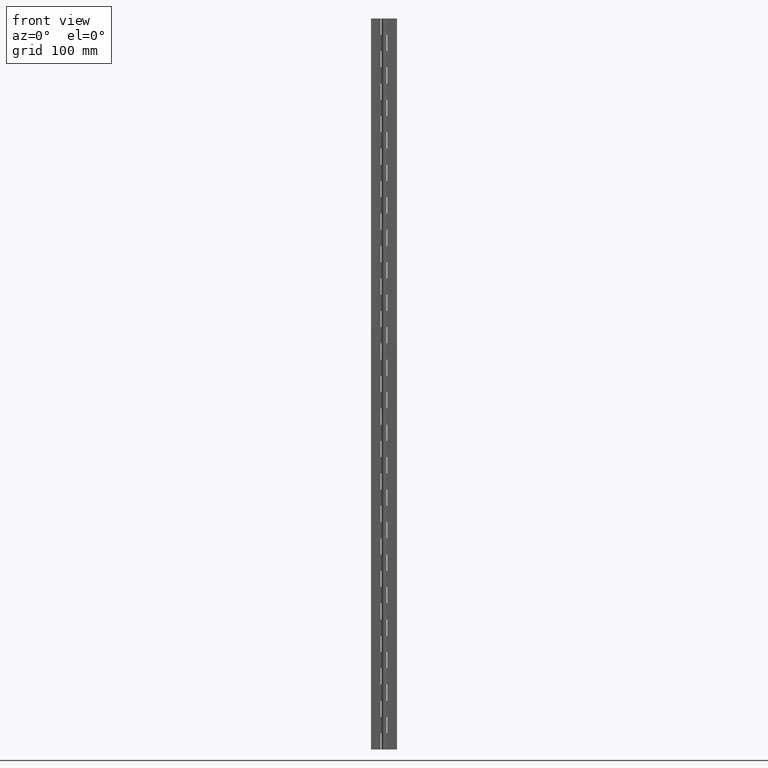
[diagram: clean part render]
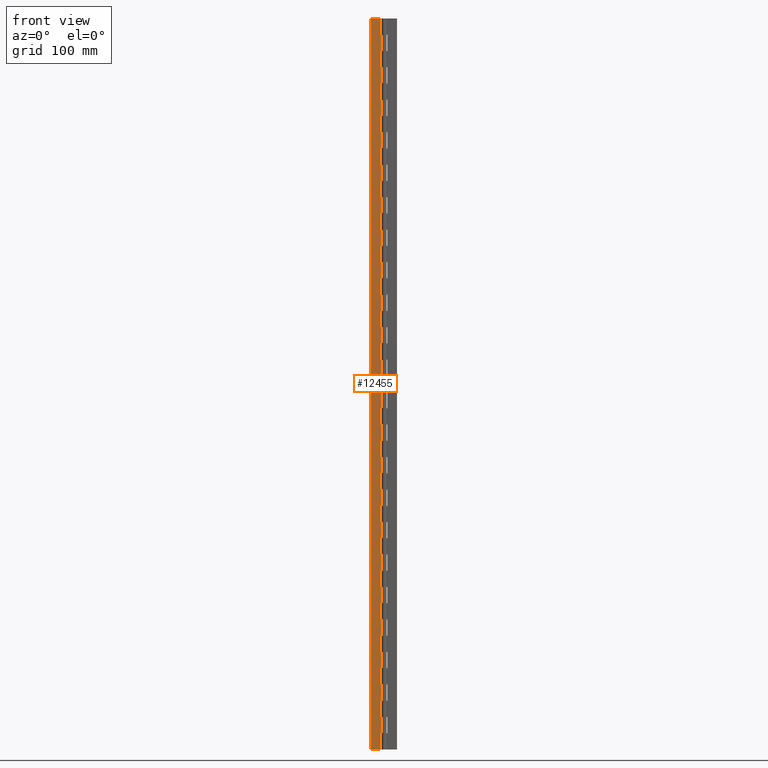
[diagram: same view with one face highlighted and labeled with its STEP entity id]
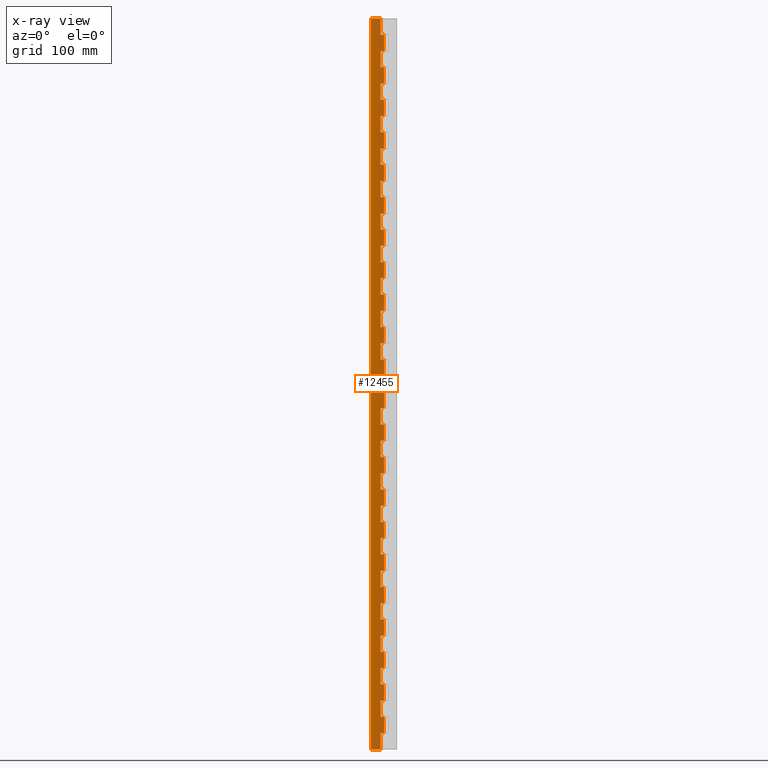
[diagram: x-ray of the same camera — body ghosted, the highlighted face saturated]
A machine part, front view. The second image highlights one B-rep face of the part: STEP entity #12455.
The next image is the same camera in x-ray: the body ghosted, the highlighted face saturated — about 0% of this face is hidden behind the body in this view.
In plain terms, the highlighted face is a freeform B-spline surface patch.
Its self-contained STEP definition (entity closure, byte-faithful):
#6569=CARTESIAN_POINT('',(-4.0,1.750000000000000,0.0));
#6570=VERTEX_POINT('',#6569);
#6583=CARTESIAN_POINT('',(-4.0,1.750000000000030,20.000022000000051));
#6584=VERTEX_POINT('',#6583);
#6590=CARTESIAN_POINT('',(-4.0,1.750000000000000,0.0));
#6591=CARTESIAN_POINT('',(-4.0,1.750000000000030,20.000022000000051));
#6592=QUASI_UNIFORM_CURVE('',1,(#6590,#6591),.UNSPECIFIED.,.F.,.U.);
#6593=EDGE_CURVE('',#6570,#6584,#6592,.T.);
#6633=CARTESIAN_POINT('',(1.071563E-016,1.750000000000000,20.000022000000051));
#6634=VERTEX_POINT('',#6633);
#6654=CARTESIAN_POINT('',(-4.0,1.750000000000030,20.000022000000051));
#6655=CARTESIAN_POINT('',(1.071563E-016,1.750000000000000,20.000022000000051));
#6656=QUASI_UNIFORM_CURVE('',1,(#6654,#6655),.UNSPECIFIED.,.F.,.U.);
#6657=EDGE_CURVE('',#6584,#6634,#6656,.T.);
#6703=CARTESIAN_POINT('',(-4.0,1.750000000000000,40.000021999999952));
#6704=VERTEX_POINT('',#6703);
#6710=CARTESIAN_POINT('',(1.071563E-016,1.750000000000000,40.000021999999952));
#6711=VERTEX_POINT('',#6710);
#6712=CARTESIAN_POINT('',(-4.0,1.750000000000000,40.000021999999952));
#6713=CARTESIAN_POINT('',(1.071563E-016,1.750000000000000,40.000021999999952));
#6714=QUASI_UNIFORM_CURVE('',1,(#6712,#6713),.UNSPECIFIED.,.F.,.U.);
#6715=EDGE_CURVE('',#6704,#6711,#6714,.T.);
#6781=CARTESIAN_POINT('',(1.071563E-016,1.750000000000000,60.000022000000101));
#6782=VERTEX_POINT('',#6781);
#6802=CARTESIAN_POINT('',(-4.0,1.750000000000030,60.000022000000101));
#6803=VERTEX_POINT('',#6802);
#6804=CARTESIAN_POINT('',(1.071563E-016,1.750000000000000,60.000022000000101));
#6805=CARTESIAN_POINT('',(-4.0,1.750000000000030,60.000022000000101));
#6806=QUASI_UNIFORM_CURVE('',1,(#6804,#6805),.UNSPECIFIED.,.F.,.U.);
#6807=EDGE_CURVE('',#6782,#6803,#6806,.T.);
#6829=CARTESIAN_POINT('',(-4.0,1.750000000000030,60.000022000000101));
#6830=CARTESIAN_POINT('',(-4.0,1.750000000000000,40.000021999999952));
#6831=QUASI_UNIFORM_CURVE('',1,(#6829,#6830),.UNSPECIFIED.,.F.,.U.);
#6832=EDGE_CURVE('',#6803,#6704,#6831,.T.);
#6879=CARTESIAN_POINT('',(-4.0,1.750000000000000,80.000021999999888));
#6880=VERTEX_POINT('',#6879);
#6886=CARTESIAN_POINT('',(1.071563E-016,1.750000000000000,80.000021999999888));
#6887=VERTEX_POINT('',#6886);
#6888=CARTESIAN_POINT('',(-4.0,1.750000000000000,80.000021999999888));
#6889=CARTESIAN_POINT('',(1.071563E-016,1.750000000000000,80.000021999999888));
#6890=QUASI_UNIFORM_CURVE('',1,(#6888,#6889),.UNSPECIFIED.,.F.,.U.);
#6891=EDGE_CURVE('',#6880,#6887,#6890,.T.);
#6957=CARTESIAN_POINT('',(1.071563E-016,1.750000000000000,100.000022000000000));
#6958=VERTEX_POINT('',#6957);
#6978=CARTESIAN_POINT('',(-4.0,1.750000000000030,100.000022000000000));
#6979=VERTEX_POINT('',#6978);
#6980=CARTESIAN_POINT('',(1.071563E-016,1.750000000000000,100.000022000000000));
#6981=CARTESIAN_POINT('',(-4.0,1.750000000000030,100.000022000000000));
#6982=QUASI_UNIFORM_CURVE('',1,(#6980,#6981),.UNSPECIFIED.,.F.,.U.);
#6983=EDGE_CURVE('',#6958,#6979,#6982,.T.);
#7005=CARTESIAN_POINT('',(-4.0,1.750000000000030,100.000022000000000));
#7006=CARTESIAN_POINT('',(-4.0,1.750000000000000,80.000021999999888));
#7007=QUASI_UNIFORM_CURVE('',1,(#7005,#7006),.UNSPECIFIED.,.F.,.U.);
#7008=EDGE_CURVE('',#6979,#6880,#7007,.T.);
#7055=CARTESIAN_POINT('',(-4.0,1.750000000000000,120.000022000000000));
#7056=VERTEX_POINT('',#7055);
#7062=CARTESIAN_POINT('',(1.071563E-016,1.750000000000000,120.000022000000000));
#7063=VERTEX_POINT('',#7062);
#7064=CARTESIAN_POINT('',(-4.0,1.750000000000000,120.000022000000000));
#7065=CARTESIAN_POINT('',(1.071563E-016,1.750000000000000,120.000022000000000));
#7066=QUASI_UNIFORM_CURVE('',1,(#7064,#7065),.UNSPECIFIED.,.F.,.U.);
#7067=EDGE_CURVE('',#7056,#7063,#7066,.T.);
#7133=CARTESIAN_POINT('',(1.071563E-016,1.750000000000000,140.000022000000000));
#7134=VERTEX_POINT('',#7133);
#7154=CARTESIAN_POINT('',(-4.0,1.750000000000030,140.000022000000000));
#7155=VERTEX_POINT('',#7154);
#7156=CARTESIAN_POINT('',(1.071563E-016,1.750000000000000,140.000022000000000));
#7157=CARTESIAN_POINT('',(-4.0,1.750000000000030,140.000022000000000));
#7158=QUASI_UNIFORM_CURVE('',1,(#7156,#7157),.UNSPECIFIED.,.F.,.U.);
#7159=EDGE_CURVE('',#7134,#7155,#7158,.T.);
#7181=CARTESIAN_POINT('',(-4.0,1.750000000000030,140.000022000000000));
#7182=CARTESIAN_POINT('',(-4.0,1.750000000000000,120.000022000000000));
#7183=QUASI_UNIFORM_CURVE('',1,(#7181,#7182),.UNSPECIFIED.,.F.,.U.);
#7184=EDGE_CURVE('',#7155,#7056,#7183,.T.);
#7231=CARTESIAN_POINT('',(-4.0,1.750000000000000,160.000022000000000));
#7232=VERTEX_POINT('',#7231);
#7238=CARTESIAN_POINT('',(1.071563E-016,1.750000000000000,160.000022000000000));
#7239=VERTEX_POINT('',#7238);
#7240=CARTESIAN_POINT('',(-4.0,1.750000000000000,160.000022000000000));
#7241=CARTESIAN_POINT('',(1.071563E-016,1.750000000000000,160.000022000000000));
#7242=QUASI_UNIFORM_CURVE('',1,(#7240,#7241),.UNSPECIFIED.,.F.,.U.);
#7243=EDGE_CURVE('',#7232,#7239,#7242,.T.);
#7309=CARTESIAN_POINT('',(1.071563E-016,1.750000000000000,180.000022000000000));
#7310=VERTEX_POINT('',#7309);
#7330=CARTESIAN_POINT('',(-4.0,1.750000000000030,180.000022000000000));
#7331=VERTEX_POINT('',#7330);
#7332=CARTESIAN_POINT('',(1.071563E-016,1.750000000000000,180.000022000000000));
#7333=CARTESIAN_POINT('',(-4.0,1.750000000000030,180.000022000000000));
#7334=QUASI_UNIFORM_CURVE('',1,(#7332,#7333),.UNSPECIFIED.,.F.,.U.);
#7335=EDGE_CURVE('',#7310,#7331,#7334,.T.);
#7357=CARTESIAN_POINT('',(-4.0,1.750000000000030,180.000022000000000));
#7358=CARTESIAN_POINT('',(-4.0,1.750000000000000,160.000022000000000));
#7359=QUASI_UNIFORM_CURVE('',1,(#7357,#7358),.UNSPECIFIED.,.F.,.U.);
#7360=EDGE_CURVE('',#7331,#7232,#7359,.T.);
#7407=CARTESIAN_POINT('',(-4.0,1.750000000000000,200.000022000000000));
#7408=VERTEX_POINT('',#7407);
#7414=CARTESIAN_POINT('',(1.071563E-016,1.750000000000000,200.000022000000000));
#7415=VERTEX_POINT('',#7414);
#7416=CARTESIAN_POINT('',(-4.0,1.750000000000000,200.000022000000000));
#7417=CARTESIAN_POINT('',(1.071563E-016,1.750000000000000,200.000022000000000));
#7418=QUASI_UNIFORM_CURVE('',1,(#7416,#7417),.UNSPECIFIED.,.F.,.U.);
#7419=EDGE_CURVE('',#7408,#7415,#7418,.T.);
#7485=CARTESIAN_POINT('',(1.071563E-016,1.750000000000000,220.000022000000000));
#7486=VERTEX_POINT('',#7485);
#7506=CARTESIAN_POINT('',(-4.0,1.750000000000030,220.000022000000000));
#7507=VERTEX_POINT('',#7506);
#7508=CARTESIAN_POINT('',(1.071563E-016,1.750000000000000,220.000022000000000));
#7509=CARTESIAN_POINT('',(-4.0,1.750000000000030,220.000022000000000));
#7510=QUASI_UNIFORM_CURVE('',1,(#7508,#7509),.UNSPECIFIED.,.F.,.U.);
#7511=EDGE_CURVE('',#7486,#7507,#7510,.T.);
#7533=CARTESIAN_POINT('',(-4.0,1.750000000000030,220.000022000000000));
#7534=CARTESIAN_POINT('',(-4.0,1.750000000000000,200.000022000000000));
#7535=QUASI_UNIFORM_CURVE('',1,(#7533,#7534),.UNSPECIFIED.,.F.,.U.);
#7536=EDGE_CURVE('',#7507,#7408,#7535,.T.);
#7583=CARTESIAN_POINT('',(-4.0,1.750000000000000,240.000022000000000));
#7584=VERTEX_POINT('',#7583);
#7590=CARTESIAN_POINT('',(1.071563E-016,1.750000000000000,240.000022000000000));
#7591=VERTEX_POINT('',#7590);
#7592=CARTESIAN_POINT('',(-4.0,1.750000000000000,240.000022000000000));
#7593=CARTESIAN_POINT('',(1.071563E-016,1.750000000000000,240.000022000000000));
#7594=QUASI_UNIFORM_CURVE('',1,(#7592,#7593),.UNSPECIFIED.,.F.,.U.);
#7595=EDGE_CURVE('',#7584,#7591,#7594,.T.);
#7661=CARTESIAN_POINT('',(1.071563E-016,1.750000000000000,260.000022000000000));
#7662=VERTEX_POINT('',#7661);
#7682=CARTESIAN_POINT('',(-4.0,1.750000000000030,260.000022000000000));
#7683=VERTEX_POINT('',#7682);
#7684=CARTESIAN_POINT('',(1.071563E-016,1.750000000000000,260.000022000000000));
#7685=CARTESIAN_POINT('',(-4.0,1.750000000000030,260.000022000000000));
#7686=QUASI_UNIFORM_CURVE('',1,(#7684,#7685),.UNSPECIFIED.,.F.,.U.);
#7687=EDGE_CURVE('',#7662,#7683,#7686,.T.);
#7709=CARTESIAN_POINT('',(-4.0,1.750000000000030,260.000022000000000));
#7710=CARTESIAN_POINT('',(-4.0,1.750000000000000,240.000022000000000));
#7711=QUASI_UNIFORM_CURVE('',1,(#7709,#7710),.UNSPECIFIED.,.F.,.U.);
#7712=EDGE_CURVE('',#7683,#7584,#7711,.T.);
#7759=CARTESIAN_POINT('',(-4.0,1.750000000000000,280.000022000000000));
#7760=VERTEX_POINT('',#7759);
#7766=CARTESIAN_POINT('',(1.071563E-016,1.750000000000000,280.000022000000000));
#7767=VERTEX_POINT('',#7766);
#7768=CARTESIAN_POINT('',(-4.0,1.750000000000000,280.000022000000000));
#7769=CARTESIAN_POINT('',(1.071563E-016,1.750000000000000,280.000022000000000));
#7770=QUASI_UNIFORM_CURVE('',1,(#7768,#7769),.UNSPECIFIED.,.F.,.U.);
#7771=EDGE_CURVE('',#7760,#7767,#7770,.T.);
#7837=CARTESIAN_POINT('',(1.071563E-016,1.750000000000000,300.000022000000000));
#7838=VERTEX_POINT('',#7837);
#7858=CARTESIAN_POINT('',(-4.0,1.750000000000030,300.000022000000000));
#7859=VERTEX_POINT('',#7858);
#7860=CARTESIAN_POINT('',(1.071563E-016,1.750000000000000,300.000022000000000));
#7861=CARTESIAN_POINT('',(-4.0,1.750000000000030,300.000022000000000));
#7862=QUASI_UNIFORM_CURVE('',1,(#7860,#7861),.UNSPECIFIED.,.F.,.U.);
#7863=EDGE_CURVE('',#7838,#7859,#7862,.T.);
#7885=CARTESIAN_POINT('',(-4.0,1.750000000000030,300.000022000000000));
#7886=CARTESIAN_POINT('',(-4.0,1.750000000000000,280.000022000000000));
#7887=QUASI_UNIFORM_CURVE('',1,(#7885,#7886),.UNSPECIFIED.,.F.,.U.);
#7888=EDGE_CURVE('',#7859,#7760,#7887,.T.);
#7935=CARTESIAN_POINT('',(-4.0,1.750000000000000,320.000022000000000));
#7936=VERTEX_POINT('',#7935);
#7942=CARTESIAN_POINT('',(1.071563E-016,1.750000000000000,320.000022000000000));
#7943=VERTEX_POINT('',#7942);
#7944=CARTESIAN_POINT('',(-4.0,1.750000000000000,320.000022000000000));
#7945=CARTESIAN_POINT('',(1.071563E-016,1.750000000000000,320.000022000000000));
#7946=QUASI_UNIFORM_CURVE('',1,(#7944,#7945),.UNSPECIFIED.,.F.,.U.);
#7947=EDGE_CURVE('',#7936,#7943,#7946,.T.);
#8013=CARTESIAN_POINT('',(1.071563E-016,1.750000000000000,340.000022000000000));
#8014=VERTEX_POINT('',#8013);
#8034=CARTESIAN_POINT('',(-4.0,1.750000000000030,340.000022000000000));
#8035=VERTEX_POINT('',#8034);
#8036=CARTESIAN_POINT('',(1.071563E-016,1.750000000000000,340.000022000000000));
#8037=CARTESIAN_POINT('',(-4.0,1.750000000000030,340.000022000000000));
#8038=QUASI_UNIFORM_CURVE('',1,(#8036,#8037),.UNSPECIFIED.,.F.,.U.);
#8039=EDGE_CURVE('',#8014,#8035,#8038,.T.);
#8061=CARTESIAN_POINT('',(-4.0,1.750000000000030,340.000022000000000));
#8062=CARTESIAN_POINT('',(-4.0,1.750000000000000,320.000022000000000));
#8063=QUASI_UNIFORM_CURVE('',1,(#8061,#8062),.UNSPECIFIED.,.F.,.U.);
#8064=EDGE_CURVE('',#8035,#7936,#8063,.T.);
#8111=CARTESIAN_POINT('',(-4.0,1.750000000000000,360.000022000000000));
#8112=VERTEX_POINT('',#8111);
#8118=CARTESIAN_POINT('',(1.071563E-016,1.750000000000000,360.000022000000000));
#8119=VERTEX_POINT('',#8118);
#8120=CARTESIAN_POINT('',(-4.0,1.750000000000000,360.000022000000000));
#8121=CARTESIAN_POINT('',(1.071563E-016,1.750000000000000,360.000022000000000));
#8122=QUASI_UNIFORM_CURVE('',1,(#8120,#8121),.UNSPECIFIED.,.F.,.U.);
#8123=EDGE_CURVE('',#8112,#8119,#8122,.T.);
#8189=CARTESIAN_POINT('',(1.071563E-016,1.750000000000000,380.000022000000000));
#8190=VERTEX_POINT('',#8189);
#8210=CARTESIAN_POINT('',(-4.0,1.750000000000030,380.000022000000000));
#8211=VERTEX_POINT('',#8210);
#8212=CARTESIAN_POINT('',(1.071563E-016,1.750000000000000,380.000022000000000));
#8213=CARTESIAN_POINT('',(-4.0,1.750000000000030,380.000022000000000));
#8214=QUASI_UNIFORM_CURVE('',1,(#8212,#8213),.UNSPECIFIED.,.F.,.U.);
#8215=EDGE_CURVE('',#8190,#8211,#8214,.T.);
#8237=CARTESIAN_POINT('',(-4.0,1.750000000000030,380.000022000000000));
#8238=CARTESIAN_POINT('',(-4.0,1.750000000000000,360.000022000000000));
#8239=QUASI_UNIFORM_CURVE('',1,(#8237,#8238),.UNSPECIFIED.,.F.,.U.);
#8240=EDGE_CURVE('',#8211,#8112,#8239,.T.);
#8287=CARTESIAN_POINT('',(-4.0,1.750000000000000,400.000022000000000));
#8288=VERTEX_POINT('',#8287);
#8294=CARTESIAN_POINT('',(1.071563E-016,1.750000000000000,400.000022000000000));
#8295=VERTEX_POINT('',#8294);
#8296=CARTESIAN_POINT('',(-4.0,1.750000000000000,400.000022000000000));
#8297=CARTESIAN_POINT('',(1.071563E-016,1.750000000000000,400.000022000000000));
#8298=QUASI_UNIFORM_CURVE('',1,(#8296,#8297),.UNSPECIFIED.,.F.,.U.);
#8299=EDGE_CURVE('',#8288,#8295,#8298,.T.);
#8365=CARTESIAN_POINT('',(1.071563E-016,1.750000000000000,420.000021999999890));
#8366=VERTEX_POINT('',#8365);
#8386=CARTESIAN_POINT('',(-4.0,1.750000000000030,420.000021999999890));
#8387=VERTEX_POINT('',#8386);
#8388=CARTESIAN_POINT('',(1.071563E-016,1.750000000000000,420.000021999999890));
#8389=CARTESIAN_POINT('',(-4.0,1.750000000000030,420.000021999999890));
#8390=QUASI_UNIFORM_CURVE('',1,(#8388,#8389),.UNSPECIFIED.,.F.,.U.);
#8391=EDGE_CURVE('',#8366,#8387,#8390,.T.);
#8413=CARTESIAN_POINT('',(-4.0,1.750000000000030,420.000021999999890));
#8414=CARTESIAN_POINT('',(-4.0,1.750000000000000,400.000022000000000));
#8415=QUASI_UNIFORM_CURVE('',1,(#8413,#8414),.UNSPECIFIED.,.F.,.U.);
#8416=EDGE_CURVE('',#8387,#8288,#8415,.T.);
#8463=CARTESIAN_POINT('',(-4.0,1.750000000000000,440.000022000000000));
#8464=VERTEX_POINT('',#8463);
#8470=CARTESIAN_POINT('',(1.071563E-016,1.750000000000000,440.000022000000000));
#8471=VERTEX_POINT('',#8470);
#8472=CARTESIAN_POINT('',(-4.0,1.750000000000000,440.000022000000000));
#8473=CARTESIAN_POINT('',(1.071563E-016,1.750000000000000,440.000022000000000));
#8474=QUASI_UNIFORM_CURVE('',1,(#8472,#8473),.UNSPECIFIED.,.F.,.U.);
#8475=EDGE_CURVE('',#8464,#8471,#8474,.T.);
#8541=CARTESIAN_POINT('',(1.071563E-016,1.750000000000000,460.000022000000000));
#8542=VERTEX_POINT('',#8541);
#8562=CARTESIAN_POINT('',(-4.0,1.750000000000030,460.000022000000000));
#8563=VERTEX_POINT('',#8562);
#8564=CARTESIAN_POINT('',(1.071563E-016,1.750000000000000,460.000022000000000));
#8565=CARTESIAN_POINT('',(-4.0,1.750000000000030,460.000022000000000));
#8566=QUASI_UNIFORM_CURVE('',1,(#8564,#8565),.UNSPECIFIED.,.F.,.U.);
#8567=EDGE_CURVE('',#8542,#8563,#8566,.T.);
#8589=CARTESIAN_POINT('',(-4.0,1.750000000000030,460.000022000000000));
#8590=CARTESIAN_POINT('',(-4.0,1.750000000000000,440.000022000000000));
#8591=QUASI_UNIFORM_CURVE('',1,(#8589,#8590),.UNSPECIFIED.,.F.,.U.);
#8592=EDGE_CURVE('',#8563,#8464,#8591,.T.);
#8639=CARTESIAN_POINT('',(-4.0,1.750000000000000,480.000022000000000));
#8640=VERTEX_POINT('',#8639);
#8646=CARTESIAN_POINT('',(1.071563E-016,1.750000000000000,480.000022000000000));
#8647=VERTEX_POINT('',#8646);
#8648=CARTESIAN_POINT('',(-4.0,1.750000000000000,480.000022000000000));
#8649=CARTESIAN_POINT('',(1.071563E-016,1.750000000000000,480.000022000000000));
#8650=QUASI_UNIFORM_CURVE('',1,(#8648,#8649),.UNSPECIFIED.,.F.,.U.);
#8651=EDGE_CURVE('',#8640,#8647,#8650,.T.);
#8717=CARTESIAN_POINT('',(1.071563E-016,1.750000000000000,500.000022000000110));
#8718=VERTEX_POINT('',#8717);
#8738=CARTESIAN_POINT('',(-4.0,1.750000000000030,500.000022000000110));
#8739=VERTEX_POINT('',#8738);
#8740=CARTESIAN_POINT('',(1.071563E-016,1.750000000000000,500.000022000000110));
#8741=CARTESIAN_POINT('',(-4.0,1.750000000000030,500.000022000000110));
#8742=QUASI_UNIFORM_CURVE('',1,(#8740,#8741),.UNSPECIFIED.,.F.,.U.);
#8743=EDGE_CURVE('',#8718,#8739,#8742,.T.);
#8765=CARTESIAN_POINT('',(-4.0,1.750000000000030,500.000022000000110));
#8766=CARTESIAN_POINT('',(-4.0,1.750000000000000,480.000022000000000));
#8767=QUASI_UNIFORM_CURVE('',1,(#8765,#8766),.UNSPECIFIED.,.F.,.U.);
#8768=EDGE_CURVE('',#8739,#8640,#8767,.T.);
#8815=CARTESIAN_POINT('',(-4.0,1.750000000000000,520.000021999999940));
#8816=VERTEX_POINT('',#8815);
#8822=CARTESIAN_POINT('',(1.071563E-016,1.750000000000000,520.000021999999940));
#8823=VERTEX_POINT('',#8822);
#8824=CARTESIAN_POINT('',(-4.0,1.750000000000000,520.000021999999940));
#8825=CARTESIAN_POINT('',(1.071563E-016,1.750000000000000,520.000021999999940));
#8826=QUASI_UNIFORM_CURVE('',1,(#8824,#8825),.UNSPECIFIED.,.F.,.U.);
#8827=EDGE_CURVE('',#8816,#8823,#8826,.T.);
#8893=CARTESIAN_POINT('',(1.071563E-016,1.750000000000000,540.000021999999940));
#8894=VERTEX_POINT('',#8893);
#8914=CARTESIAN_POINT('',(-4.0,1.750000000000030,540.000021999999940));
#8915=VERTEX_POINT('',#8914);
#8916=CARTESIAN_POINT('',(1.071563E-016,1.750000000000000,540.000021999999940));
#8917=CARTESIAN_POINT('',(-4.0,1.750000000000030,540.000021999999940));
#8918=QUASI_UNIFORM_CURVE('',1,(#8916,#8917),.UNSPECIFIED.,.F.,.U.);
#8919=EDGE_CURVE('',#8894,#8915,#8918,.T.);
#8941=CARTESIAN_POINT('',(-4.0,1.750000000000030,540.000021999999940));
#8942=CARTESIAN_POINT('',(-4.0,1.750000000000000,520.000021999999940));
#8943=QUASI_UNIFORM_CURVE('',1,(#8941,#8942),.UNSPECIFIED.,.F.,.U.);
#8944=EDGE_CURVE('',#8915,#8816,#8943,.T.);
#8991=CARTESIAN_POINT('',(-4.0,1.750000000000000,560.000021999999940));
#8992=VERTEX_POINT('',#8991);
#8998=CARTESIAN_POINT('',(1.071563E-016,1.750000000000000,560.000021999999940));
#8999=VERTEX_POINT('',#8998);
#9000=CARTESIAN_POINT('',(-4.0,1.750000000000000,560.000021999999940));
#9001=CARTESIAN_POINT('',(1.071563E-016,1.750000000000000,560.000021999999940));
#9002=QUASI_UNIFORM_CURVE('',1,(#9000,#9001),.UNSPECIFIED.,.F.,.U.);
#9003=EDGE_CURVE('',#8992,#8999,#9002,.T.);
#9069=CARTESIAN_POINT('',(1.071563E-016,1.750000000000000,580.000022000000060));
#9070=VERTEX_POINT('',#9069);
#9090=CARTESIAN_POINT('',(-4.0,1.750000000000030,580.000022000000060));
#9091=VERTEX_POINT('',#9090);
#9092=CARTESIAN_POINT('',(1.071563E-016,1.750000000000000,580.000022000000060));
#9093=CARTESIAN_POINT('',(-4.0,1.750000000000030,580.000022000000060));
#9094=QUASI_UNIFORM_CURVE('',1,(#9092,#9093),.UNSPECIFIED.,.F.,.U.);
#9095=EDGE_CURVE('',#9070,#9091,#9094,.T.);
#9117=CARTESIAN_POINT('',(-4.0,1.750000000000030,580.000022000000060));
#9118=CARTESIAN_POINT('',(-4.0,1.750000000000000,560.000021999999940));
#9119=QUASI_UNIFORM_CURVE('',1,(#9117,#9118),.UNSPECIFIED.,.F.,.U.);
#9120=EDGE_CURVE('',#9091,#8992,#9119,.T.);
#9167=CARTESIAN_POINT('',(-4.0,1.750000000000000,600.000022000000060));
#9168=VERTEX_POINT('',#9167);
#9174=CARTESIAN_POINT('',(1.071563E-016,1.750000000000000,600.000022000000060));
#9175=VERTEX_POINT('',#9174);
#9176=CARTESIAN_POINT('',(-4.0,1.750000000000000,600.000022000000060));
#9177=CARTESIAN_POINT('',(1.071563E-016,1.750000000000000,600.000022000000060));
#9178=QUASI_UNIFORM_CURVE('',1,(#9176,#9177),.UNSPECIFIED.,.F.,.U.);
#9179=EDGE_CURVE('',#9168,#9175,#9178,.T.);
#9245=CARTESIAN_POINT('',(1.071563E-016,1.750000000000000,620.000022000000060));
#9246=VERTEX_POINT('',#9245);
#9266=CARTESIAN_POINT('',(-4.0,1.750000000000030,620.000022000000060));
#9267=VERTEX_POINT('',#9266);
#9268=CARTESIAN_POINT('',(1.071563E-016,1.750000000000000,620.000022000000060));
#9269=CARTESIAN_POINT('',(-4.0,1.750000000000030,620.000022000000060));
#9270=QUASI_UNIFORM_CURVE('',1,(#9268,#9269),.UNSPECIFIED.,.F.,.U.);
#9271=EDGE_CURVE('',#9246,#9267,#9270,.T.);
#9293=CARTESIAN_POINT('',(-4.0,1.750000000000030,620.000022000000060));
#9294=CARTESIAN_POINT('',(-4.0,1.750000000000000,600.000022000000060));
#9295=QUASI_UNIFORM_CURVE('',1,(#9293,#9294),.UNSPECIFIED.,.F.,.U.);
#9296=EDGE_CURVE('',#9267,#9168,#9295,.T.);
#9343=CARTESIAN_POINT('',(-4.0,1.750000000000000,640.000021999999940));
#9344=VERTEX_POINT('',#9343);
#9350=CARTESIAN_POINT('',(1.071563E-016,1.750000000000000,640.000021999999940));
#9351=VERTEX_POINT('',#9350);
#9352=CARTESIAN_POINT('',(-4.0,1.750000000000000,640.000021999999940));
#9353=CARTESIAN_POINT('',(1.071563E-016,1.750000000000000,640.000021999999940));
#9354=QUASI_UNIFORM_CURVE('',1,(#9352,#9353),.UNSPECIFIED.,.F.,.U.);
#9355=EDGE_CURVE('',#9344,#9351,#9354,.T.);
#9421=CARTESIAN_POINT('',(1.071563E-016,1.750000000000000,660.000021999999940));
#9422=VERTEX_POINT('',#9421);
#9442=CARTESIAN_POINT('',(-4.0,1.750000000000030,660.000021999999940));
#9443=VERTEX_POINT('',#9442);
#9444=CARTESIAN_POINT('',(1.071563E-016,1.750000000000000,660.000021999999940));
#9445=CARTESIAN_POINT('',(-4.0,1.750000000000030,660.000021999999940));
#9446=QUASI_UNIFORM_CURVE('',1,(#9444,#9445),.UNSPECIFIED.,.F.,.U.);
#9447=EDGE_CURVE('',#9422,#9443,#9446,.T.);
#9469=CARTESIAN_POINT('',(-4.0,1.750000000000030,660.000021999999940));
#9470=CARTESIAN_POINT('',(-4.0,1.750000000000000,640.000021999999940));
#9471=QUASI_UNIFORM_CURVE('',1,(#9469,#9470),.UNSPECIFIED.,.F.,.U.);
#9472=EDGE_CURVE('',#9443,#9344,#9471,.T.);
#9519=CARTESIAN_POINT('',(-4.0,1.750000000000000,680.000021999999940));
#9520=VERTEX_POINT('',#9519);
#9526=CARTESIAN_POINT('',(1.071563E-016,1.750000000000000,680.000021999999940));
#9527=VERTEX_POINT('',#9526);
#9528=CARTESIAN_POINT('',(-4.0,1.750000000000000,680.000021999999940));
#9529=CARTESIAN_POINT('',(1.071563E-016,1.750000000000000,680.000021999999940));
#9530=QUASI_UNIFORM_CURVE('',1,(#9528,#9529),.UNSPECIFIED.,.F.,.U.);
#9531=EDGE_CURVE('',#9520,#9527,#9530,.T.);
#9597=CARTESIAN_POINT('',(1.071563E-016,1.750000000000000,700.000021999999940));
#9598=VERTEX_POINT('',#9597);
#9618=CARTESIAN_POINT('',(-4.0,1.750000000000030,700.000021999999940));
#9619=VERTEX_POINT('',#9618);
#9620=CARTESIAN_POINT('',(1.071563E-016,1.750000000000000,700.000021999999940));
#9621=CARTESIAN_POINT('',(-4.0,1.750000000000030,700.000021999999940));
#9622=QUASI_UNIFORM_CURVE('',1,(#9620,#9621),.UNSPECIFIED.,.F.,.U.);
#9623=EDGE_CURVE('',#9598,#9619,#9622,.T.);
#9645=CARTESIAN_POINT('',(-4.0,1.750000000000030,700.000021999999940));
#9646=CARTESIAN_POINT('',(-4.0,1.750000000000000,680.000021999999940));
#9647=QUASI_UNIFORM_CURVE('',1,(#9645,#9646),.UNSPECIFIED.,.F.,.U.);
#9648=EDGE_CURVE('',#9619,#9520,#9647,.T.);
#9695=CARTESIAN_POINT('',(-4.0,1.750000000000000,720.000022000000060));
#9696=VERTEX_POINT('',#9695);
#9702=CARTESIAN_POINT('',(1.071563E-016,1.750000000000000,720.000022000000060));
#9703=VERTEX_POINT('',#9702);
#9704=CARTESIAN_POINT('',(-4.0,1.750000000000000,720.000022000000060));
#9705=CARTESIAN_POINT('',(1.071563E-016,1.750000000000000,720.000022000000060));
#9706=QUASI_UNIFORM_CURVE('',1,(#9704,#9705),.UNSPECIFIED.,.F.,.U.);
#9707=EDGE_CURVE('',#9696,#9703,#9706,.T.);
#9773=CARTESIAN_POINT('',(1.071563E-016,1.750000000000000,740.000022000000060));
#9774=VERTEX_POINT('',#9773);
#9794=CARTESIAN_POINT('',(-4.0,1.750000000000030,740.000022000000060));
#9795=VERTEX_POINT('',#9794);
#9796=CARTESIAN_POINT('',(1.071563E-016,1.750000000000000,740.000022000000060));
#9797=CARTESIAN_POINT('',(-4.0,1.750000000000030,740.000022000000060));
#9798=QUASI_UNIFORM_CURVE('',1,(#9796,#9797),.UNSPECIFIED.,.F.,.U.);
#9799=EDGE_CURVE('',#9774,#9795,#9798,.T.);
#9821=CARTESIAN_POINT('',(-4.0,1.750000000000030,740.000022000000060));
#9822=CARTESIAN_POINT('',(-4.0,1.750000000000000,720.000022000000060));
#9823=QUASI_UNIFORM_CURVE('',1,(#9821,#9822),.UNSPECIFIED.,.F.,.U.);
#9824=EDGE_CURVE('',#9795,#9696,#9823,.T.);
#9871=CARTESIAN_POINT('',(-4.0,1.750000000000000,760.000022000000060));
#9872=VERTEX_POINT('',#9871);
#9878=CARTESIAN_POINT('',(1.071563E-016,1.750000000000000,760.000022000000060));
#9879=VERTEX_POINT('',#9878);
#9880=CARTESIAN_POINT('',(-4.0,1.750000000000000,760.000022000000060));
#9881=CARTESIAN_POINT('',(1.071563E-016,1.750000000000000,760.000022000000060));
#9882=QUASI_UNIFORM_CURVE('',1,(#9880,#9881),.UNSPECIFIED.,.F.,.U.);
#9883=EDGE_CURVE('',#9872,#9879,#9882,.T.);
#9949=CARTESIAN_POINT('',(1.071563E-016,1.750000000000000,780.000021999999940));
#9950=VERTEX_POINT('',#9949);
#9970=CARTESIAN_POINT('',(-4.0,1.750000000000030,780.000021999999940));
#9971=VERTEX_POINT('',#9970);
#9972=CARTESIAN_POINT('',(1.071563E-016,1.750000000000000,780.000021999999940));
#9973=CARTESIAN_POINT('',(-4.0,1.750000000000030,780.000021999999940));
#9974=QUASI_UNIFORM_CURVE('',1,(#9972,#9973),.UNSPECIFIED.,.F.,.U.);
#9975=EDGE_CURVE('',#9950,#9971,#9974,.T.);
#9997=CARTESIAN_POINT('',(-4.0,1.750000000000030,780.000021999999940));
#9998=CARTESIAN_POINT('',(-4.0,1.750000000000000,760.000022000000060));
#9999=QUASI_UNIFORM_CURVE('',1,(#9997,#9998),.UNSPECIFIED.,.F.,.U.);
#10000=EDGE_CURVE('',#9971,#9872,#9999,.T.);
#10047=CARTESIAN_POINT('',(-4.0,1.750000000000000,800.000021999999940));
#10048=VERTEX_POINT('',#10047);
#10054=CARTESIAN_POINT('',(1.071563E-016,1.750000000000000,800.000021999999940));
#10055=VERTEX_POINT('',#10054);
#10056=CARTESIAN_POINT('',(-4.0,1.750000000000000,800.000021999999940));
#10057=CARTESIAN_POINT('',(1.071563E-016,1.750000000000000,800.000021999999940));
#10058=QUASI_UNIFORM_CURVE('',1,(#10056,#10057),.UNSPECIFIED.,.F.,.U.);
#10059=EDGE_CURVE('',#10048,#10055,#10058,.T.);
#10125=CARTESIAN_POINT('',(1.071563E-016,1.750000000000000,820.000021999999940));
#10126=VERTEX_POINT('',#10125);
#10146=CARTESIAN_POINT('',(-4.0,1.750000000000030,820.000021999999940));
#10147=VERTEX_POINT('',#10146);
#10148=CARTESIAN_POINT('',(1.071563E-016,1.750000000000000,820.000021999999940));
#10149=CARTESIAN_POINT('',(-4.0,1.750000000000030,820.000021999999940));
#10150=QUASI_UNIFORM_CURVE('',1,(#10148,#10149),.UNSPECIFIED.,.F.,.U.);
#10151=EDGE_CURVE('',#10126,#10147,#10150,.T.);
#10173=CARTESIAN_POINT('',(-4.0,1.750000000000030,820.000021999999940));
#10174=CARTESIAN_POINT('',(-4.0,1.750000000000000,800.000021999999940));
#10175=QUASI_UNIFORM_CURVE('',1,(#10173,#10174),.UNSPECIFIED.,.F.,.U.);
#10176=EDGE_CURVE('',#10147,#10048,#10175,.T.);
#10223=CARTESIAN_POINT('',(-4.0,1.750000000000000,840.000022000000060));
#10224=VERTEX_POINT('',#10223);
#10230=CARTESIAN_POINT('',(1.071563E-016,1.750000000000000,840.000022000000060));
#10231=VERTEX_POINT('',#10230);
#10232=CARTESIAN_POINT('',(-4.0,1.750000000000000,840.000022000000060));
#10233=CARTESIAN_POINT('',(1.071563E-016,1.750000000000000,840.000022000000060));
#10234=QUASI_UNIFORM_CURVE('',1,(#10232,#10233),.UNSPECIFIED.,.F.,.U.);
#10235=EDGE_CURVE('',#10224,#10231,#10234,.T.);
#10301=CARTESIAN_POINT('',(1.071563E-016,1.750000000000000,860.000022000000060));
#10302=VERTEX_POINT('',#10301);
#10322=CARTESIAN_POINT('',(-4.0,1.750000000000030,860.000022000000060));
#10323=VERTEX_POINT('',#10322);
#10324=CARTESIAN_POINT('',(1.071563E-016,1.750000000000000,860.000022000000060));
#10325=CARTESIAN_POINT('',(-4.0,1.750000000000030,860.000022000000060));
#10326=QUASI_UNIFORM_CURVE('',1,(#10324,#10325),.UNSPECIFIED.,.F.,.U.);
#10327=EDGE_CURVE('',#10302,#10323,#10326,.T.);
#10349=CARTESIAN_POINT('',(-4.0,1.750000000000030,860.000022000000060));
#10350=CARTESIAN_POINT('',(-4.0,1.750000000000000,840.000022000000060));
#10351=QUASI_UNIFORM_CURVE('',1,(#10349,#10350),.UNSPECIFIED.,.F.,.U.);
#10352=EDGE_CURVE('',#10323,#10224,#10351,.T.);
#10399=CARTESIAN_POINT('',(-4.0,1.750000000000030,880.000022000000060));
#10400=VERTEX_POINT('',#10399);
#10406=CARTESIAN_POINT('',(1.071563E-016,1.750000000000000,880.000022000000060));
#10407=VERTEX_POINT('',#10406);
#10408=CARTESIAN_POINT('',(-4.0,1.750000000000030,880.000022000000060));
#10409=CARTESIAN_POINT('',(1.071563E-016,1.750000000000000,880.000022000000060));
#10410=QUASI_UNIFORM_CURVE('',1,(#10408,#10409),.UNSPECIFIED.,.F.,.U.);
#10411=EDGE_CURVE('',#10400,#10407,#10410,.T.);
#10447=CARTESIAN_POINT('',(-4.0,1.750000000000030,900.000021999999940));
#10448=VERTEX_POINT('',#10447);
#10449=CARTESIAN_POINT('',(-4.0,1.750000000000030,900.000021999999940));
#10450=CARTESIAN_POINT('',(-4.0,1.750000000000030,880.000022000000060));
#10451=QUASI_UNIFORM_CURVE('',1,(#10449,#10450),.UNSPECIFIED.,.F.,.U.);
#10452=EDGE_CURVE('',#10448,#10400,#10451,.T.);
#10475=CARTESIAN_POINT('',(-16.0,1.750000000000000,900.000021999999940));
#10476=VERTEX_POINT('',#10475);
#10477=CARTESIAN_POINT('',(-4.0,1.750000000000030,900.000021999999940));
#10478=CARTESIAN_POINT('',(-16.0,1.750000000000000,900.000021999999940));
#10479=QUASI_UNIFORM_CURVE('',1,(#10477,#10478),.UNSPECIFIED.,.F.,.U.);
#10480=EDGE_CURVE('',#10448,#10476,#10479,.T.);
#10540=CARTESIAN_POINT('',(-16.0,1.750000000000000,0.0));
#10541=VERTEX_POINT('',#10540);
#10549=CARTESIAN_POINT('',(-16.0,1.750000000000000,900.000021999999940));
#10550=CARTESIAN_POINT('',(-16.0,1.750000000000000,0.0));
#10551=QUASI_UNIFORM_CURVE('',1,(#10549,#10550),.UNSPECIFIED.,.F.,.U.);
#10552=EDGE_CURVE('',#10476,#10541,#10551,.T.);
#10585=CARTESIAN_POINT('',(1.071563E-016,1.750000000000000,880.000022000000060));
#10586=CARTESIAN_POINT('',(1.071563E-016,1.750000000000000,860.000022000000060));
#10587=QUASI_UNIFORM_CURVE('',1,(#10585,#10586),.UNSPECIFIED.,.F.,.U.);
#10588=EDGE_CURVE('',#10407,#10302,#10587,.T.);
#10671=CARTESIAN_POINT('',(1.071563E-016,1.750000000000000,840.000022000000060));
#10672=CARTESIAN_POINT('',(1.071563E-016,1.750000000000000,820.000021999999940));
#10673=QUASI_UNIFORM_CURVE('',1,(#10671,#10672),.UNSPECIFIED.,.F.,.U.);
#10674=EDGE_CURVE('',#10231,#10126,#10673,.T.);
#10757=CARTESIAN_POINT('',(1.071563E-016,1.750000000000000,800.000021999999940));
#10758=CARTESIAN_POINT('',(1.071563E-016,1.750000000000000,780.000021999999940));
#10759=QUASI_UNIFORM_CURVE('',1,(#10757,#10758),.UNSPECIFIED.,.F.,.U.);
#10760=EDGE_CURVE('',#10055,#9950,#10759,.T.);
#10843=CARTESIAN_POINT('',(1.071563E-016,1.750000000000000,760.000022000000060));
#10844=CARTESIAN_POINT('',(1.071563E-016,1.750000000000000,740.000022000000060));
#10845=QUASI_UNIFORM_CURVE('',1,(#10843,#10844),.UNSPECIFIED.,.F.,.U.);
#10846=EDGE_CURVE('',#9879,#9774,#10845,.T.);
#10929=CARTESIAN_POINT('',(1.071563E-016,1.750000000000000,720.000022000000060));
#10930=CARTESIAN_POINT('',(1.071563E-016,1.750000000000000,700.000021999999940));
#10931=QUASI_UNIFORM_CURVE('',1,(#10929,#10930),.UNSPECIFIED.,.F.,.U.);
#10932=EDGE_CURVE('',#9703,#9598,#10931,.T.);
#11015=CARTESIAN_POINT('',(1.071563E-016,1.750000000000000,680.000021999999940));
#11016=CARTESIAN_POINT('',(1.071563E-016,1.750000000000000,660.000021999999940));
#11017=QUASI_UNIFORM_CURVE('',1,(#11015,#11016),.UNSPECIFIED.,.F.,.U.);
#11018=EDGE_CURVE('',#9527,#9422,#11017,.T.);
#11101=CARTESIAN_POINT('',(1.071563E-016,1.750000000000000,640.000021999999940));
#11102=CARTESIAN_POINT('',(1.071563E-016,1.750000000000000,620.000022000000060));
#11103=QUASI_UNIFORM_CURVE('',1,(#11101,#11102),.UNSPECIFIED.,.F.,.U.);
#11104=EDGE_CURVE('',#9351,#9246,#11103,.T.);
#11187=CARTESIAN_POINT('',(1.071563E-016,1.750000000000000,600.000022000000060));
#11188=CARTESIAN_POINT('',(1.071563E-016,1.750000000000000,580.000022000000060));
#11189=QUASI_UNIFORM_CURVE('',1,(#11187,#11188),.UNSPECIFIED.,.F.,.U.);
#11190=EDGE_CURVE('',#9175,#9070,#11189,.T.);
#11273=CARTESIAN_POINT('',(1.071563E-016,1.750000000000000,560.000021999999940));
#11274=CARTESIAN_POINT('',(1.071563E-016,1.750000000000000,540.000021999999940));
#11275=QUASI_UNIFORM_CURVE('',1,(#11273,#11274),.UNSPECIFIED.,.F.,.U.);
#11276=EDGE_CURVE('',#8999,#8894,#11275,.T.);
#11359=CARTESIAN_POINT('',(1.071563E-016,1.750000000000000,520.000021999999940));
#11360=CARTESIAN_POINT('',(1.071563E-016,1.750000000000000,500.000022000000110));
#11361=QUASI_UNIFORM_CURVE('',1,(#11359,#11360),.UNSPECIFIED.,.F.,.U.);
#11362=EDGE_CURVE('',#8823,#8718,#11361,.T.);
#11445=CARTESIAN_POINT('',(1.071563E-016,1.750000000000000,480.000022000000000));
#11446=CARTESIAN_POINT('',(1.071563E-016,1.750000000000000,460.000022000000000));
#11447=QUASI_UNIFORM_CURVE('',1,(#11445,#11446),.UNSPECIFIED.,.F.,.U.);
#11448=EDGE_CURVE('',#8647,#8542,#11447,.T.);
#11531=CARTESIAN_POINT('',(1.071563E-016,1.750000000000000,440.000022000000000));
#11532=CARTESIAN_POINT('',(1.071563E-016,1.750000000000000,420.000021999999890));
#11533=QUASI_UNIFORM_CURVE('',1,(#11531,#11532),.UNSPECIFIED.,.F.,.U.);
#11534=EDGE_CURVE('',#8471,#8366,#11533,.T.);
#11617=CARTESIAN_POINT('',(1.071563E-016,1.750000000000000,400.000022000000000));
#11618=CARTESIAN_POINT('',(1.071563E-016,1.750000000000000,380.000022000000000));
#11619=QUASI_UNIFORM_CURVE('',1,(#11617,#11618),.UNSPECIFIED.,.F.,.U.);
#11620=EDGE_CURVE('',#8295,#8190,#11619,.T.);
#11703=CARTESIAN_POINT('',(1.071563E-016,1.750000000000000,360.000022000000000));
#11704=CARTESIAN_POINT('',(1.071563E-016,1.750000000000000,340.000022000000000));
#11705=QUASI_UNIFORM_CURVE('',1,(#11703,#11704),.UNSPECIFIED.,.F.,.U.);
#11706=EDGE_CURVE('',#8119,#8014,#11705,.T.);
#11789=CARTESIAN_POINT('',(1.071563E-016,1.750000000000000,320.000022000000000));
#11790=CARTESIAN_POINT('',(1.071563E-016,1.750000000000000,300.000022000000000));
#11791=QUASI_UNIFORM_CURVE('',1,(#11789,#11790),.UNSPECIFIED.,.F.,.U.);
#11792=EDGE_CURVE('',#7943,#7838,#11791,.T.);
#11875=CARTESIAN_POINT('',(1.071563E-016,1.750000000000000,280.000022000000000));
#11876=CARTESIAN_POINT('',(1.071563E-016,1.750000000000000,260.000022000000000));
#11877=QUASI_UNIFORM_CURVE('',1,(#11875,#11876),.UNSPECIFIED.,.F.,.U.);
#11878=EDGE_CURVE('',#7767,#7662,#11877,.T.);
#11961=CARTESIAN_POINT('',(1.071563E-016,1.750000000000000,240.000022000000000));
#11962=CARTESIAN_POINT('',(1.071563E-016,1.750000000000000,220.000022000000000));
#11963=QUASI_UNIFORM_CURVE('',1,(#11961,#11962),.UNSPECIFIED.,.F.,.U.);
#11964=EDGE_CURVE('',#7591,#7486,#11963,.T.);
#12047=CARTESIAN_POINT('',(1.071563E-016,1.750000000000000,200.000022000000000));
#12048=CARTESIAN_POINT('',(1.071563E-016,1.750000000000000,180.000022000000000));
#12049=QUASI_UNIFORM_CURVE('',1,(#12047,#12048),.UNSPECIFIED.,.F.,.U.);
#12050=EDGE_CURVE('',#7415,#7310,#12049,.T.);
#12133=CARTESIAN_POINT('',(1.071563E-016,1.750000000000000,160.000022000000000));
#12134=CARTESIAN_POINT('',(1.071563E-016,1.750000000000000,140.000022000000000));
#12135=QUASI_UNIFORM_CURVE('',1,(#12133,#12134),.UNSPECIFIED.,.F.,.U.);
#12136=EDGE_CURVE('',#7239,#7134,#12135,.T.);
#12219=CARTESIAN_POINT('',(1.071563E-016,1.750000000000000,120.000022000000000));
#12220=CARTESIAN_POINT('',(1.071563E-016,1.750000000000000,100.000022000000000));
#12221=QUASI_UNIFORM_CURVE('',1,(#12219,#12220),.UNSPECIFIED.,.F.,.U.);
#12222=EDGE_CURVE('',#7063,#6958,#12221,.T.);
#12305=CARTESIAN_POINT('',(1.071563E-016,1.750000000000000,80.000021999999888));
#12306=CARTESIAN_POINT('',(1.071563E-016,1.750000000000000,60.000022000000101));
#12307=QUASI_UNIFORM_CURVE('',1,(#12305,#12306),.UNSPECIFIED.,.F.,.U.);
#12308=EDGE_CURVE('',#6887,#6782,#12307,.T.);
#12343=CARTESIAN_POINT('',(-4.0,1.750000000000000,0.0));
#12344=CARTESIAN_POINT('',(-16.0,1.750000000000000,0.0));
#12345=QUASI_UNIFORM_CURVE('',1,(#12343,#12344),.UNSPECIFIED.,.F.,.U.);
#12346=EDGE_CURVE('',#6570,#10541,#12345,.T.);
#12352=CARTESIAN_POINT('',(-16.799199968988891,1.750000000000000,944.955004457412660));
#12353=CARTESIAN_POINT('',(-16.799199968988891,1.750000000000000,-44.955022690548908));
#12354=CARTESIAN_POINT('',(0.799200398142338,1.750000000000000,944.955004457412660));
#12355=CARTESIAN_POINT('',(0.799200398142338,1.750000000000000,-44.955022690548908));
#12356=B_SPLINE_SURFACE_WITH_KNOTS('',1,1,((#12352,#12354),(#12353,#12355)),.UNSPECIFIED.,.F.,.F.,.U.,(2,2),(2,2),(0.0,989.910027147961730),(0.0,17.598400367131230),.UNSPECIFIED.);
#12357=ORIENTED_EDGE('',*,*,#6593,.T.);
#12358=ORIENTED_EDGE('',*,*,#6657,.T.);
#12359=CARTESIAN_POINT('',(1.071563E-016,1.750000000000000,40.000021999999952));
#12360=CARTESIAN_POINT('',(1.071563E-016,1.750000000000000,20.000022000000051));
#12361=QUASI_UNIFORM_CURVE('',1,(#12359,#12360),.UNSPECIFIED.,.F.,.U.);
#12362=EDGE_CURVE('',#6711,#6634,#12361,.T.);
#12363=ORIENTED_EDGE('',*,*,#12362,.F.);
#12364=ORIENTED_EDGE('',*,*,#6715,.F.);
#12365=ORIENTED_EDGE('',*,*,#6832,.F.);
#12366=ORIENTED_EDGE('',*,*,#6807,.F.);
#12367=ORIENTED_EDGE('',*,*,#12308,.F.);
#12368=ORIENTED_EDGE('',*,*,#6891,.F.);
#12369=ORIENTED_EDGE('',*,*,#7008,.F.);
#12370=ORIENTED_EDGE('',*,*,#6983,.F.);
#12371=ORIENTED_EDGE('',*,*,#12222,.F.);
#12372=ORIENTED_EDGE('',*,*,#7067,.F.);
#12373=ORIENTED_EDGE('',*,*,#7184,.F.);
#12374=ORIENTED_EDGE('',*,*,#7159,.F.);
#12375=ORIENTED_EDGE('',*,*,#12136,.F.);
#12376=ORIENTED_EDGE('',*,*,#7243,.F.);
#12377=ORIENTED_EDGE('',*,*,#7360,.F.);
#12378=ORIENTED_EDGE('',*,*,#7335,.F.);
#12379=ORIENTED_EDGE('',*,*,#12050,.F.);
#12380=ORIENTED_EDGE('',*,*,#7419,.F.);
#12381=ORIENTED_EDGE('',*,*,#7536,.F.);
#12382=ORIENTED_EDGE('',*,*,#7511,.F.);
#12383=ORIENTED_EDGE('',*,*,#11964,.F.);
#12384=ORIENTED_EDGE('',*,*,#7595,.F.);
#12385=ORIENTED_EDGE('',*,*,#7712,.F.);
#12386=ORIENTED_EDGE('',*,*,#7687,.F.);
#12387=ORIENTED_EDGE('',*,*,#11878,.F.);
#12388=ORIENTED_EDGE('',*,*,#7771,.F.);
#12389=ORIENTED_EDGE('',*,*,#7888,.F.);
#12390=ORIENTED_EDGE('',*,*,#7863,.F.);
#12391=ORIENTED_EDGE('',*,*,#11792,.F.);
#12392=ORIENTED_EDGE('',*,*,#7947,.F.);
#12393=ORIENTED_EDGE('',*,*,#8064,.F.);
#12394=ORIENTED_EDGE('',*,*,#8039,.F.);
#12395=ORIENTED_EDGE('',*,*,#11706,.F.);
#12396=ORIENTED_EDGE('',*,*,#8123,.F.);
#12397=ORIENTED_EDGE('',*,*,#8240,.F.);
#12398=ORIENTED_EDGE('',*,*,#8215,.F.);
#12399=ORIENTED_EDGE('',*,*,#11620,.F.);
#12400=ORIENTED_EDGE('',*,*,#8299,.F.);
#12401=ORIENTED_EDGE('',*,*,#8416,.F.);
#12402=ORIENTED_EDGE('',*,*,#8391,.F.);
#12403=ORIENTED_EDGE('',*,*,#11534,.F.);
#12404=ORIENTED_EDGE('',*,*,#8475,.F.);
#12405=ORIENTED_EDGE('',*,*,#8592,.F.);
#12406=ORIENTED_EDGE('',*,*,#8567,.F.);
#12407=ORIENTED_EDGE('',*,*,#11448,.F.);
#12408=ORIENTED_EDGE('',*,*,#8651,.F.);
#12409=ORIENTED_EDGE('',*,*,#8768,.F.);
#12410=ORIENTED_EDGE('',*,*,#8743,.F.);
#12411=ORIENTED_EDGE('',*,*,#11362,.F.);
#12412=ORIENTED_EDGE('',*,*,#8827,.F.);
#12413=ORIENTED_EDGE('',*,*,#8944,.F.);
#12414=ORIENTED_EDGE('',*,*,#8919,.F.);
#12415=ORIENTED_EDGE('',*,*,#11276,.F.);
#12416=ORIENTED_EDGE('',*,*,#9003,.F.);
#12417=ORIENTED_EDGE('',*,*,#9120,.F.);
#12418=ORIENTED_EDGE('',*,*,#9095,.F.);
#12419=ORIENTED_EDGE('',*,*,#11190,.F.);
#12420=ORIENTED_EDGE('',*,*,#9179,.F.);
#12421=ORIENTED_EDGE('',*,*,#9296,.F.);
#12422=ORIENTED_EDGE('',*,*,#9271,.F.);
#12423=ORIENTED_EDGE('',*,*,#11104,.F.);
#12424=ORIENTED_EDGE('',*,*,#9355,.F.);
#12425=ORIENTED_EDGE('',*,*,#9472,.F.);
#12426=ORIENTED_EDGE('',*,*,#9447,.F.);
#12427=ORIENTED_EDGE('',*,*,#11018,.F.);
#12428=ORIENTED_EDGE('',*,*,#9531,.F.);
#12429=ORIENTED_EDGE('',*,*,#9648,.F.);
#12430=ORIENTED_EDGE('',*,*,#9623,.F.);
#12431=ORIENTED_EDGE('',*,*,#10932,.F.);
#12432=ORIENTED_EDGE('',*,*,#9707,.F.);
#12433=ORIENTED_EDGE('',*,*,#9824,.F.);
#12434=ORIENTED_EDGE('',*,*,#9799,.F.);
#12435=ORIENTED_EDGE('',*,*,#10846,.F.);
#12436=ORIENTED_EDGE('',*,*,#9883,.F.);
#12437=ORIENTED_EDGE('',*,*,#10000,.F.);
#12438=ORIENTED_EDGE('',*,*,#9975,.F.);
#12439=ORIENTED_EDGE('',*,*,#10760,.F.);
#12440=ORIENTED_EDGE('',*,*,#10059,.F.);
#12441=ORIENTED_EDGE('',*,*,#10176,.F.);
#12442=ORIENTED_EDGE('',*,*,#10151,.F.);
#12443=ORIENTED_EDGE('',*,*,#10674,.F.);
#12444=ORIENTED_EDGE('',*,*,#10235,.F.);
#12445=ORIENTED_EDGE('',*,*,#10352,.F.);
#12446=ORIENTED_EDGE('',*,*,#10327,.F.);
#12447=ORIENTED_EDGE('',*,*,#10588,.F.);
#12448=ORIENTED_EDGE('',*,*,#10411,.F.);
#12449=ORIENTED_EDGE('',*,*,#10452,.F.);
#12450=ORIENTED_EDGE('',*,*,#10480,.T.);
#12451=ORIENTED_EDGE('',*,*,#10552,.T.);
#12452=ORIENTED_EDGE('',*,*,#12346,.F.);
#12453=EDGE_LOOP('',(#12357,#12358,#12363,#12364,#12365,#12366,#12367,#12368,#12369,#12370,#12371,#12372,#12373,#12374,#12375,#12376,#12377,#12378,#12379,#12380,#12381,#12382,#12383,#12384,#12385,#12386,#12387,#12388,#12389,#12390,#12391,#12392,#12393,#12394,#12395,#12396,#12397,#12398,#12399,#12400,#12401,#12402,#12403,#12404,#12405,#12406,#12407,#12408,#12409,#12410,#12411,#12412,#12413,#12414,#12415,#12416,#12417,#12418,#12419,#12420,#12421,#12422,#12423,#12424,#12425,#12426,#12427,#12428,#12429,#12430,#12431,#12432,#12433,#12434,#12435,#12436,#12437,#12438,#12439,#12440,#12441,#12442,#12443,#12444,#12445,#12446,#12447,#12448,#12449,#12450,#12451,#12452));
#12454=FACE_OUTER_BOUND('',#12453,.T.);
#12455=ADVANCED_FACE('',(#12454),#12356,.T.);